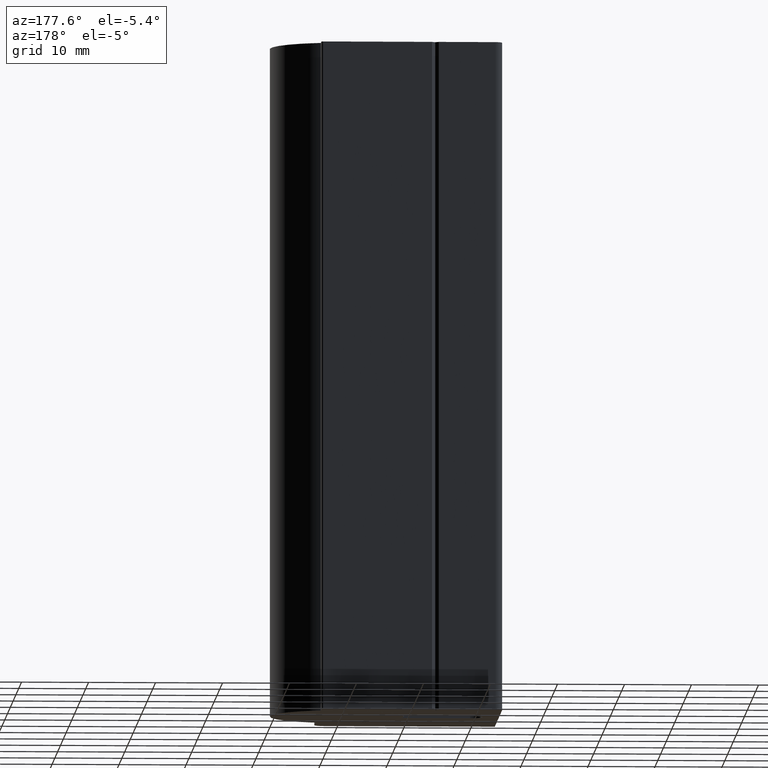
[diagram: clean part render]
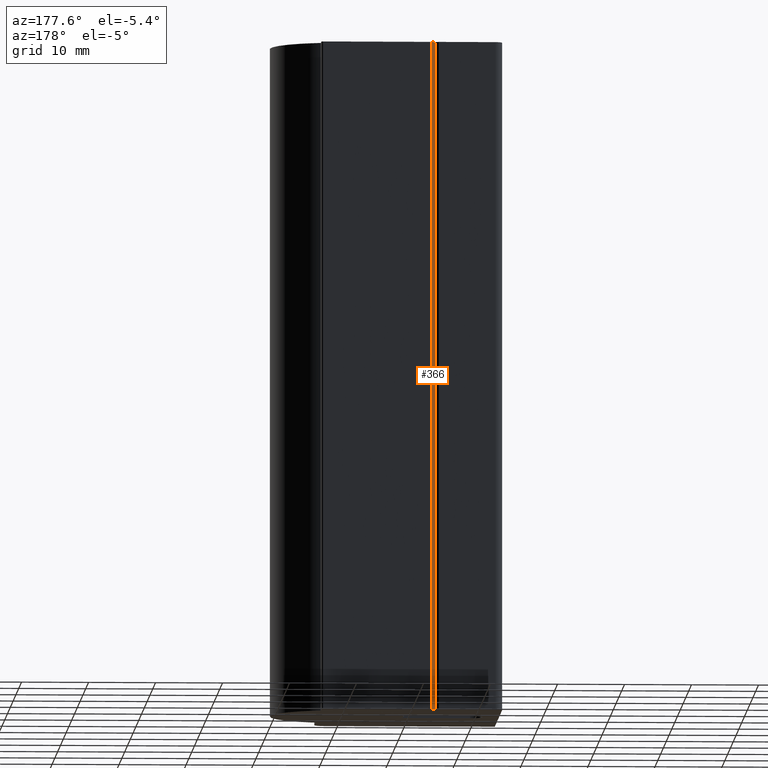
[diagram: same view with one face highlighted and labeled with its STEP entity id]
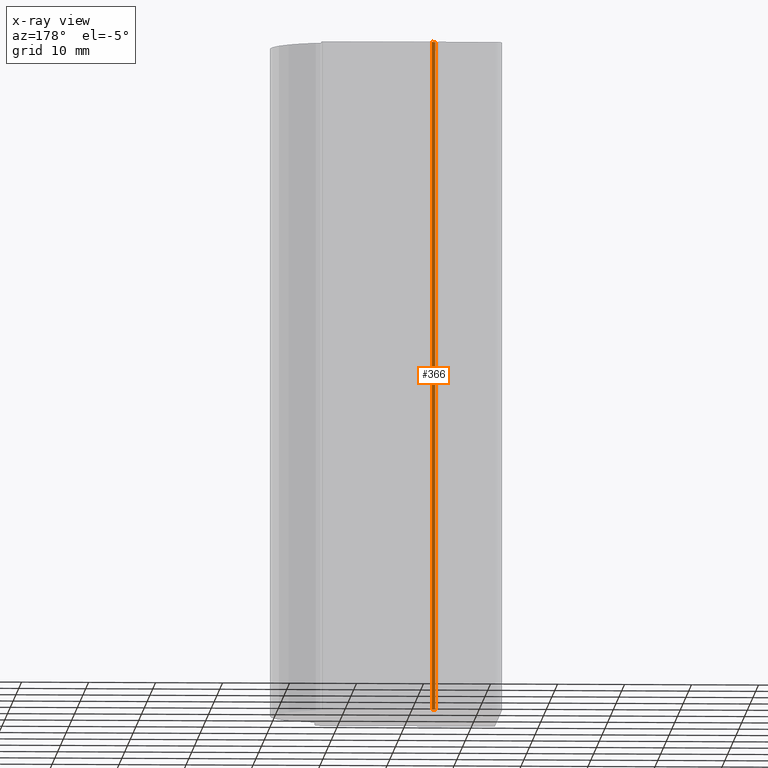
[diagram: x-ray of the same camera — body ghosted, the highlighted face saturated]
A machine part, auxiliary view. The second image highlights one B-rep face of the part: STEP entity #366.
The next image is the same camera in x-ray: the body ghosted, the highlighted face saturated — about 0% of this face is hidden behind the body in this view.
In plain terms, the highlighted planar face has unit normal (-0.7071, 0.7071, 0).
Its self-contained STEP definition (entity closure, byte-faithful):
#49=FACE_OUTER_BOUND('',#70,.T.);
#70=EDGE_LOOP('',(#253,#254,#255,#256));
#93=LINE('',#617,#130);
#94=LINE('',#620,#131);
#95=LINE('',#622,#132);
#96=LINE('',#623,#133);
#130=VECTOR('',#499,10.);
#131=VECTOR('',#502,10.);
#132=VECTOR('',#503,10.);
#133=VECTOR('',#504,10.);
#164=VERTEX_POINT('',#610);
#167=VERTEX_POINT('',#615);
#168=VERTEX_POINT('',#619);
#169=VERTEX_POINT('',#621);
#201=EDGE_CURVE('',#164,#167,#93,.T.);
#202=EDGE_CURVE('',#168,#164,#94,.T.);
#203=EDGE_CURVE('',#169,#167,#95,.T.);
#204=EDGE_CURVE('',#168,#169,#96,.T.);
#253=ORIENTED_EDGE('',*,*,#202,.T.);
#254=ORIENTED_EDGE('',*,*,#201,.T.);
#255=ORIENTED_EDGE('',*,*,#203,.F.);
#256=ORIENTED_EDGE('',*,*,#204,.F.);
#352=PLANE('',#453);
#366=ADVANCED_FACE('',(#49),#352,.T.);
#453=AXIS2_PLACEMENT_3D('',#618,#500,#501);
#499=DIRECTION('',(0.,0.,1.));
#500=DIRECTION('center_axis',(-0.707106781186508,0.707106781186587,0.));
#501=DIRECTION('ref_axis',(-0.707106781186587,-0.707106781186508,0.));
#502=DIRECTION('',(-0.707106781186587,-0.707106781186508,0.));
#503=DIRECTION('',(-0.707106781186587,-0.707106781186508,0.));
#504=DIRECTION('',(0.,0.,1.));
#610=CARTESIAN_POINT('',(-14.1999999999615,11.4999999999198,0.));
#615=CARTESIAN_POINT('',(-14.1999999999615,11.4999999999198,100.));
#617=CARTESIAN_POINT('',(-14.1999999999615,11.4999999999198,0.));
#618=CARTESIAN_POINT('Origin',(-13.6999999999615,11.9999999999197,0.));
#619=CARTESIAN_POINT('',(-13.6999999999615,11.9999999999197,0.));
#620=CARTESIAN_POINT('',(-13.6999999999615,11.9999999999197,0.));
#621=CARTESIAN_POINT('',(-13.6999999999615,11.9999999999197,100.));
#622=CARTESIAN_POINT('',(-13.6999999999615,11.9999999999197,100.));
#623=CARTESIAN_POINT('',(-13.6999999999615,11.9999999999197,0.));